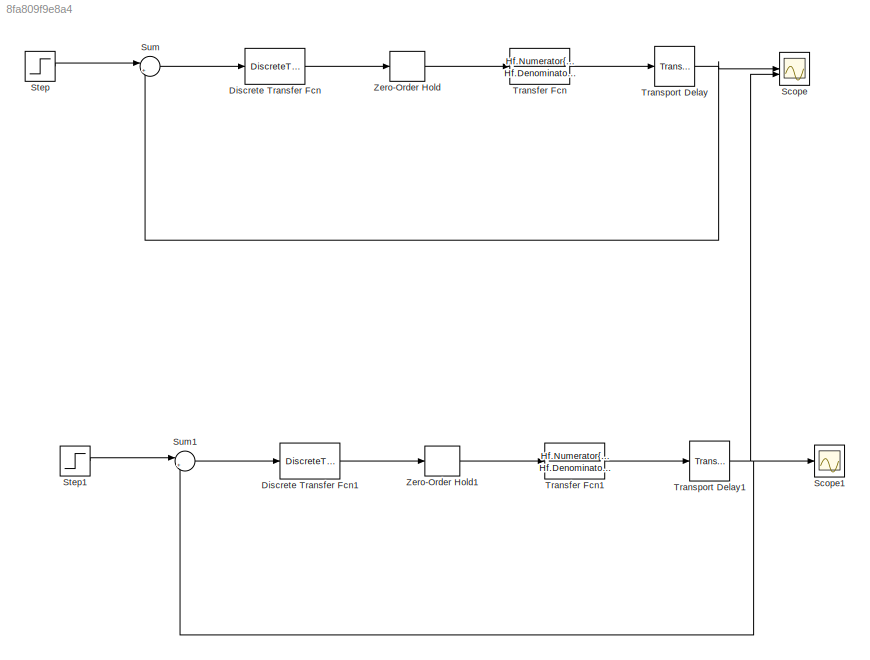
MODEL slx_8fa809f9e8a4
KIND model
CONFIG AbsTol = auto
CONFIG EnableMultiTasking = off
CONFIG FixedStep = auto
CONFIG MaxStep = auto
CONFIG MinStep = auto
CONFIG RelTol = 1e-3
CONFIG SampleTimeConstraint = Unconstrained
CONFIG SolverName = VariableStepAuto
CONFIG StartTime = 0.0
CONFIG StopTime = 100
BLOCK [DiscreteTransferFcn] Discrete Transfer Fcn
  Denominator = Hpi_dis.Denominator{:}
  InputPortMap = u0
  Numerator = Hpi_dis.Numerator{:}
BLOCK [DiscreteTransferFcn] Discrete Transfer Fcn1
  Denominator = Hpi_dis_2.Denominator{:}
  InputPortMap = u0
  Numerator = Hpi_dis_2.Numerator{:}
BLOCK [Scope] Scope
  Floating = off
  NumInputPorts = 2
  ScopeSpecificationString = Simulink.scopes.TimeScopeBlockCfg('CurrentConfiguration', extmgr.ConfigurationSet(extmgr.Configuration('Core','General UI',true),extmgr.Configuration('Core','Source UI',true),extmgr.Configuration('Sources','WiredSimulink',true),extmgr.Configuration('Visuals','Time Domain',true,'SerializedDisplays',{struct('MinYLimReal','-0.10548','MaxYLimReal','0.94929','YLabelReal','','MinYLimMag','0.00000','MaxY...<+1409ch>
BLOCK [Scope] Scope1
  Floating = off
  NumInputPorts = 1
  ScopeSpecificationString = Simulink.scopes.TimeScopeBlockCfg('CurrentConfiguration', extmgr.ConfigurationSet(extmgr.Configuration('Core','General UI',true),extmgr.Configuration('Core','Source UI',true),extmgr.Configuration('Sources','WiredSimulink',true,'DataLoggingVariableName','ScopeData1'),extmgr.Configuration('Visuals','Time Domain',true,'SerializedDisplays',{struct('MinYLimReal','-0.09528','MaxYLimReal','0.85748','YLab...<+1403ch>
BLOCK [Step] Step
  SampleTime = 0
BLOCK [Step] Step1
  SampleTime = 0
BLOCK [Sum] Sum
  Inputs = |+-
BLOCK [Sum] Sum1
  Inputs = |+-
BLOCK [TransferFcn] Transfer Fcn
  Denominator = Hf.Denominator{:}
  Numerator = Hf.Numerator{:}
BLOCK [TransferFcn] Transfer Fcn1
  Denominator = Hf.Denominator{:}
  Numerator = Hf.Numerator{:}
BLOCK [TransportDelay] Transport Delay
BLOCK [TransportDelay] Transport Delay1
BLOCK [ZeroOrderHold] Zero-Order Hold
  SampleTime = -1
BLOCK [ZeroOrderHold] Zero-Order Hold1
  SampleTime = -1
LINE Discrete Transfer Fcn1:1 -> Zero-Order Hold1:1
LINE Discrete Transfer Fcn:1 -> Zero-Order Hold:1
LINE Step1:1 -> Sum1:1
LINE Step:1 -> Sum:1
LINE Sum1:1 -> Discrete Transfer Fcn1:1
LINE Sum:1 -> Discrete Transfer Fcn:1
LINE Transfer Fcn1:1 -> Transport Delay1:1
LINE Transfer Fcn:1 -> Transport Delay:1
NET Transport Delay1:1 -> Scope1:1, Scope:2, Sum1:2
NET Transport Delay:1 -> Scope:1, Sum:2
LINE Zero-Order Hold1:1 -> Transfer Fcn1:1
LINE Zero-Order Hold:1 -> Transfer Fcn:1
note: NET lines group one-source signal fan-out (src -> all destinations, sorted); 1:1 wires keep LINE
